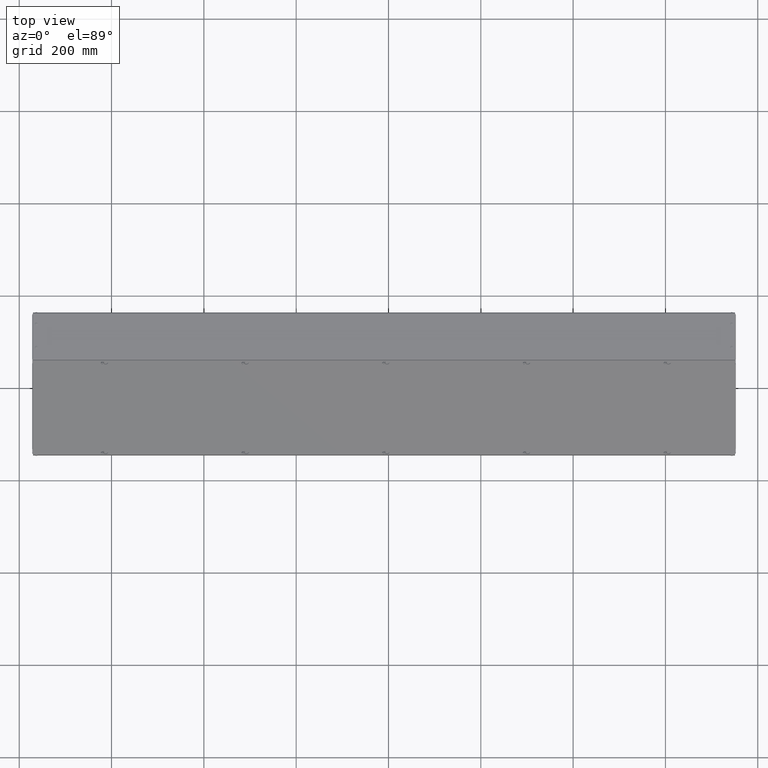
[diagram: clean part render]
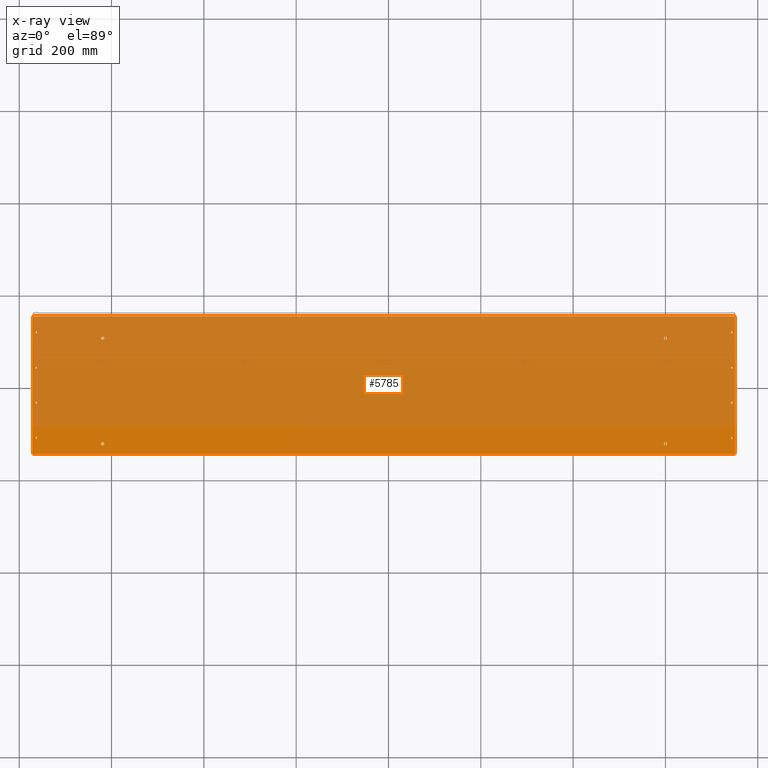
[diagram: x-ray — body ghosted, one internal face saturated and labeled with its STEP entity id]
A machine part, top view, then the same camera in x-ray: the body is ghosted and one INTERNAL B-rep face — a face not visible from any outside direction — is saturated and labeled: STEP entity #5785.
In plain terms, the highlighted planar face has unit normal (0, 0, 1).
Its self-contained STEP definition (entity closure, byte-faithful):
#67 = CARTESIAN_POINT ( 'NONE',  ( -30.10410261284468803, 0.2610560773330821704, -2.925999999999999712 ) ) ;
#87 = EDGE_CURVE ( 'NONE', #47981, #4675, #55573, .T. ) ;
#467 = ORIENTED_EDGE ( 'NONE', *, *, #30110, .T. ) ;
#586 = EDGE_CURVE ( 'NONE', #84459, #63064, #25784, .T. ) ;
#711 = CIRCLE ( 'NONE', #66900, 0.1406250000000000833 ) ;
#1185 = DIRECTION ( 'NONE',  ( 0.000000000000000000, -1.000000000000000000, -0.000000000000000000 ) ) ;
#1289 = AXIS2_PLACEMENT_3D ( 'NONE', #33510, #7184, #67166 ) ;
#1302 = ORIENTED_EDGE ( 'NONE', *, *, #85970, .T. ) ;
#1373 = CARTESIAN_POINT ( 'NONE',  ( -30.10410261284468803, -1.274443922666927076, -2.925999999999973511 ) ) ;
#1643 = ORIENTED_EDGE ( 'NONE', *, *, #71227, .T. ) ;
#1821 = DIRECTION ( 'NONE',  ( -0.000000000000000000, -0.000000000000000000, -1.000000000000000000 ) ) ;
#1939 = EDGE_CURVE ( 'NONE', #110360, #84459, #85112, .T. ) ;
#2021 = VERTEX_POINT ( 'NONE', #87285 ) ;
#2071 = AXIS2_PLACEMENT_3D ( 'NONE', #8148, #24937, #110011 ) ;
#2684 = EDGE_CURVE ( 'NONE', #87425, #71681, #72903, .T. ) ;
#3114 = CARTESIAN_POINT ( 'NONE',  ( -29.97510261284469024, 0.2610560773330821704, -2.925999999999999712 ) ) ;
#3175 = CARTESIAN_POINT ( 'NONE',  ( -30.03960261284468913, 1.796556077333073098, -2.925999999999973511 ) ) ;
#3363 = LINE ( 'NONE', #64997, #63883 ) ;
#3573 = FACE_BOUND ( 'NONE', #63814, .T. ) ;
#3999 = DIRECTION ( 'NONE',  ( 1.000000000000000000, 0.000000000000000000, 0.000000000000000000 ) ) ;
#4057 = EDGE_CURVE ( 'NONE', #29372, #75062, #90377, .T. ) ;
#4448 = CARTESIAN_POINT ( 'NONE',  ( 29.33739738715530621, 4.725556077333092908, -2.925999999999999712 ) ) ;
#4509 = ORIENTED_EDGE ( 'NONE', *, *, #48217, .T. ) ;
#4675 = VERTEX_POINT ( 'NONE', #75490 ) ;
#4802 = CIRCLE ( 'NONE', #67452, 0.06449999999999926625 ) ;
#4894 = DIRECTION ( 'NONE',  ( 1.000000000000000000, 0.000000000000000000, 0.000000000000000000 ) ) ;
#5207 = ORIENTED_EDGE ( 'NONE', *, *, #12339, .T. ) ;
#5224 = ORIENTED_EDGE ( 'NONE', *, *, #65846, .T. ) ;
#5241 = FACE_BOUND ( 'NONE', #100048, .T. ) ;
#5785 = ADVANCED_FACE ( 'NONE', ( #88679, #39492, #22034, #89227, #3573, #12564, #80863, #98152, #29337, #13126, #71454, #5241, #80329 ), #81399, .T. ) ;
#5865 = EDGE_LOOP ( 'NONE', ( #109676, #74136 ) ) ;
#5966 = CARTESIAN_POINT ( 'NONE',  ( 29.27289738715530731, 4.725556077333092908, -2.925999999999999712 ) ) ;
#6095 = AXIS2_PLACEMENT_3D ( 'NONE', #28340, #102836, #77103 ) ;
#6464 = AXIS2_PLACEMENT_3D ( 'NONE', #56890, #33266, #60722 ) ;
#6536 = CIRCLE ( 'NONE', #79844, 0.06449999999999926625 ) ;
#7184 = DIRECTION ( 'NONE',  ( -0.000000000000000000, -0.000000000000000000, -1.000000000000000000 ) ) ;
#7399 = VERTEX_POINT ( 'NONE', #75769 ) ;
#7944 = CARTESIAN_POINT ( 'NONE',  ( 23.75727238715530731, -4.738943922666926767, -2.925999999999999712 ) ) ;
#8056 = CARTESIAN_POINT ( 'NONE',  ( 29.27289738715530731, -1.274443922666906870, -2.925999999999947310 ) ) ;
#8148 = CARTESIAN_POINT ( 'NONE',  ( -30.03960261284468913, 4.796556077333073098, -2.925999999999999712 ) ) ;
#8338 = LINE ( 'NONE', #58791, #97193 ) ;
#8450 = CIRCLE ( 'NONE', #24466, 0.1406250000000000833 ) ;
#8699 = CARTESIAN_POINT ( 'NONE',  ( 29.33739738715530621, -4.274443922666907092, -2.925999999999960632 ) ) ;
#8985 = CARTESIAN_POINT ( 'NONE',  ( -29.97510261284469024, 0.2610560773330821704, -2.925999999999999712 ) ) ;
#9421 = ORIENTED_EDGE ( 'NONE', *, *, #2684, .T. ) ;
#11255 = EDGE_CURVE ( 'NONE', #28569, #70049, #23058, .T. ) ;
#11435 = CARTESIAN_POINT ( 'NONE',  ( -24.38335261284468913, -4.738943922666926767, -2.925999999999999712 ) ) ;
#11994 = CIRCLE ( 'NONE', #74629, 0.06449999999999926625 ) ;
#12164 = ORIENTED_EDGE ( 'NONE', *, *, #19745, .T. ) ;
#12339 = EDGE_CURVE ( 'NONE', #70049, #83781, #37708, .T. ) ;
#12383 = VECTOR ( 'NONE', #100377, 39.37007874015748143 ) ;
#12564 = FACE_BOUND ( 'NONE', #32855, .T. ) ;
#12592 = ORIENTED_EDGE ( 'NONE', *, *, #30614, .T. ) ;
#12611 = CIRCLE ( 'NONE', #51949, 0.06449999999999926625 ) ;
#12808 = CIRCLE ( 'NONE', #2071, 0.06449999999999926625 ) ;
#12867 = CARTESIAN_POINT ( 'NONE',  ( 29.55414738715530731, 0.2610560773330821704, -2.925999999999999712 ) ) ;
#13028 = CARTESIAN_POINT ( 'NONE',  ( -30.32085261284468913, 0.2610560773330821704, -2.925999999999999712 ) ) ;
#13096 = EDGE_CURVE ( 'NONE', #75062, #63698, #69164, .T. ) ;
#13126 = FACE_BOUND ( 'NONE', #5865, .T. ) ;
#13169 = DIRECTION ( 'NONE',  ( -0.000000000000000000, 1.000000000000000000, 0.000000000000000000 ) ) ;
#13410 = LINE ( 'NONE', #89500, #53964 ) ;
#13775 = DIRECTION ( 'NONE',  ( -0.000000000000000000, 1.000000000000000000, 0.000000000000000000 ) ) ;
#14184 = LINE ( 'NONE', #30401, #75920 ) ;
#14226 = EDGE_CURVE ( 'NONE', #36136, #18622, #102645, .T. ) ;
#14552 = CARTESIAN_POINT ( 'NONE',  ( 29.27289738715530731, 1.725556077333093130, -2.925999999999973511 ) ) ;
#14679 = CARTESIAN_POINT ( 'NONE',  ( -30.10410261284468803, -4.203443922666926902, -2.925999999999960632 ) ) ;
#14694 = DIRECTION ( 'NONE',  ( -0.000000000000000000, -0.000000000000000000, -1.000000000000000000 ) ) ;
#14763 = ORIENTED_EDGE ( 'NONE', *, *, #65984, .T. ) ;
#14911 = CARTESIAN_POINT ( 'NONE',  ( 29.20839738715530842, 0.2610560773330821704, -2.925999999999999712 ) ) ;
#15136 = ORIENTED_EDGE ( 'NONE', *, *, #85664, .T. ) ;
#15186 = DIRECTION ( 'NONE',  ( -0.000000000000000000, -0.000000000000000000, -1.000000000000000000 ) ) ;
#15219 = CIRCLE ( 'NONE', #42142, 0.06449999999999926625 ) ;
#15240 = DIRECTION ( 'NONE',  ( 1.000000000000000000, 0.000000000000000000, 0.000000000000000000 ) ) ;
#15477 = EDGE_CURVE ( 'NONE', #69903, #92430, #106278, .T. ) ;
#16056 = DIRECTION ( 'NONE',  ( -0.000000000000000000, -0.000000000000000000, -1.000000000000000000 ) ) ;
#16068 = DIRECTION ( 'NONE',  ( -0.000000000000000000, -0.000000000000000000, -1.000000000000000000 ) ) ;
#16822 = CARTESIAN_POINT ( 'NONE',  ( -30.10410261284468803, -4.274443922666926632, -2.925999999999960632 ) ) ;
#16866 = LINE ( 'NONE', #51053, #63683 ) ;
#16969 = VECTOR ( 'NONE', #103045, 39.37007874015748143 ) ;
#17520 = ORIENTED_EDGE ( 'NONE', *, *, #39293, .T. ) ;
#17898 = CARTESIAN_POINT ( 'NONE',  ( -30.10410261284468803, 1.796556077333073098, -2.925999999999986834 ) ) ;
#18619 = CIRCLE ( 'NONE', #29411, 0.06449999999999926625 ) ;
#18622 = VERTEX_POINT ( 'NONE', #30743 ) ;
#18769 = ORIENTED_EDGE ( 'NONE', *, *, #11255, .T. ) ;
#18939 = DIRECTION ( 'NONE',  ( -0.000000000000000000, -0.000000000000000000, -1.000000000000000000 ) ) ;
#19151 = AXIS2_PLACEMENT_3D ( 'NONE', #22360, #101274, #24561 ) ;
#19224 = CARTESIAN_POINT ( 'NONE',  ( 29.55414738715530731, -5.602443922666921594, -2.925999999999999712 ) ) ;
#19507 = ORIENTED_EDGE ( 'NONE', *, *, #586, .T. ) ;
#19703 = CIRCLE ( 'NONE', #32244, 0.1406250000000000833 ) ;
#19745 = EDGE_CURVE ( 'NONE', #60635, #7399, #12808, .T. ) ;
#20486 = EDGE_LOOP ( 'NONE', ( #61306, #61018 ) ) ;
#21356 = VERTEX_POINT ( 'NONE', #43670 ) ;
#21567 = LINE ( 'NONE', #99921, #23849 ) ;
#22034 = FACE_BOUND ( 'NONE', #99055, .T. ) ;
#22089 = DIRECTION ( 'NONE',  ( -0.000000000000000000, -0.000000000000000000, -1.000000000000000000 ) ) ;
#22297 = CARTESIAN_POINT ( 'NONE',  ( -29.97510261284469024, 4.725556077333073368, -2.925999999999999712 ) ) ;
#22360 = CARTESIAN_POINT ( 'NONE',  ( 29.27289738715530731, 4.796556077333092638, -2.925999999999999712 ) ) ;
#22482 = EDGE_CURVE ( 'NONE', #18622, #36136, #103006, .T. ) ;
#23058 = LINE ( 'NONE', #48360, #77811 ) ;
#23193 = DIRECTION ( 'NONE',  ( 1.000000000000000000, 0.000000000000000000, 0.000000000000000000 ) ) ;
#23270 = EDGE_CURVE ( 'NONE', #88938, #68200, #107067, .T. ) ;
#23685 = CARTESIAN_POINT ( 'NONE',  ( -29.97510261284469024, 0.2610560773330821704, -2.925999999999999712 ) ) ;
#23714 = EDGE_CURVE ( 'NONE', #54673, #110360, #11994, .T. ) ;
#23849 = VECTOR ( 'NONE', #13775, 39.37007874015748143 ) ;
#23932 = AXIS2_PLACEMENT_3D ( 'NONE', #100137, #64954, #47644 ) ;
#24466 = AXIS2_PLACEMENT_3D ( 'NONE', #69663, #93618, #103720 ) ;
#24561 = DIRECTION ( 'NONE',  ( 1.000000000000000000, 0.000000000000000000, 0.000000000000000000 ) ) ;
#24585 = ORIENTED_EDGE ( 'NONE', *, *, #88890, .T. ) ;
#24617 = VERTEX_POINT ( 'NONE', #107907 ) ;
#24937 = DIRECTION ( 'NONE',  ( -0.000000000000000000, -0.000000000000000000, -1.000000000000000000 ) ) ;
#25784 = CIRCLE ( 'NONE', #88366, 0.06449999999999926625 ) ;
#25790 = VERTEX_POINT ( 'NONE', #8699 ) ;
#26412 = EDGE_CURVE ( 'NONE', #2021, #46898, #32926, .T. ) ;
#27546 = CARTESIAN_POINT ( 'NONE',  ( -30.03960261284468913, 4.725556077333073368, -2.925999999999999712 ) ) ;
#27585 = DIRECTION ( 'NONE',  ( 0.000000000000000000, -1.000000000000000000, -0.000000000000000000 ) ) ;
#28039 = ORIENTED_EDGE ( 'NONE', *, *, #87982, .T. ) ;
#28340 = CARTESIAN_POINT ( 'NONE',  ( 23.61664738715530731, -4.738943922666926767, -2.925999999999999712 ) ) ;
#28569 = VERTEX_POINT ( 'NONE', #82409 ) ;
#28779 = DIRECTION ( 'NONE',  ( 1.000000000000000000, 0.000000000000000000, -0.000000000000000000 ) ) ;
#28866 = DIRECTION ( 'NONE',  ( 0.000000000000000000, -1.000000000000000000, -0.000000000000000000 ) ) ;
#29004 = VERTEX_POINT ( 'NONE', #40780 ) ;
#29052 = CARTESIAN_POINT ( 'NONE',  ( -29.97510261284469024, -4.274443922666926632, -2.925999999999960632 ) ) ;
#29252 = CARTESIAN_POINT ( 'NONE',  ( 29.20839738715530842, 1.796556077333093304, -2.925999999999986834 ) ) ;
#29321 = EDGE_CURVE ( 'NONE', #45063, #29372, #83749, .T. ) ;
#29337 = FACE_BOUND ( 'NONE', #75043, .T. ) ;
#29372 = VERTEX_POINT ( 'NONE', #61131 ) ;
#29390 = ORIENTED_EDGE ( 'NONE', *, *, #39735, .T. ) ;
#29411 = AXIS2_PLACEMENT_3D ( 'NONE', #92678, #16068, #58663 ) ;
#29687 = VECTOR ( 'NONE', #1185, 39.37007874015748143 ) ;
#29915 = CARTESIAN_POINT ( 'NONE',  ( -0.3833526128446826386, 0.2610560773330821704, -2.925999999999999712 ) ) ;
#30110 = EDGE_CURVE ( 'NONE', #68200, #29004, #57203, .T. ) ;
#30298 = CARTESIAN_POINT ( 'NONE',  ( 29.20839738715530842, 0.2610560773330821704, -2.925999999999999712 ) ) ;
#30388 = CARTESIAN_POINT ( 'NONE',  ( 29.33739738715530621, 0.2610560773330821704, -2.925999999999999712 ) ) ;
#30401 = CARTESIAN_POINT ( 'NONE',  ( -30.10410261284468803, 0.2610560773330821704, -2.925999999999999712 ) ) ;
#30614 = EDGE_CURVE ( 'NONE', #92430, #69903, #55526, .T. ) ;
#30743 = CARTESIAN_POINT ( 'NONE',  ( 23.47602238715530731, -4.738943922666926767, -2.925999999999999712 ) ) ;
#30962 = CARTESIAN_POINT ( 'NONE',  ( -29.97510261284469024, -1.274443922666927076, -2.925999999999973511 ) ) ;
#31089 = CARTESIAN_POINT ( 'NONE',  ( -30.03960261284468913, 1.725556077333072924, -2.925999999999973511 ) ) ;
#31837 = DIRECTION ( 'NONE',  ( -0.000000000000000000, 1.000000000000000000, 0.000000000000000000 ) ) ;
#31942 = VECTOR ( 'NONE', #99875, 39.37007874015748143 ) ;
#32244 = AXIS2_PLACEMENT_3D ( 'NONE', #49827, #72463, #97487 ) ;
#32333 = ORIENTED_EDGE ( 'NONE', *, *, #15477, .T. ) ;
#32576 = AXIS2_PLACEMENT_3D ( 'NONE', #14552, #101290, #83940 ) ;
#32750 = EDGE_CURVE ( 'NONE', #91322, #21356, #19703, .T. ) ;
#32804 = EDGE_CURVE ( 'NONE', #66942, #51550, #12611, .T. ) ;
#32855 = EDGE_LOOP ( 'NONE', ( #4509, #24585, #74690, #94249 ) ) ;
#32926 = CIRCLE ( 'NONE', #23932, 0.1406250000000000833 ) ;
#33154 = VECTOR ( 'NONE', #28866, 39.37007874015748143 ) ;
#33266 = DIRECTION ( 'NONE',  ( -0.000000000000000000, -0.000000000000000000, -1.000000000000000000 ) ) ;
#33510 = CARTESIAN_POINT ( 'NONE',  ( 29.27289738715530731, -4.203443922666907362, -2.925999999999921108 ) ) ;
#34192 = DIRECTION ( 'NONE',  ( -0.000000000000000000, 1.000000000000000000, 0.000000000000000000 ) ) ;
#34292 = CARTESIAN_POINT ( 'NONE',  ( -24.38335261284468913, -4.738943922666926767, -2.925999999999999712 ) ) ;
#34906 = VECTOR ( 'NONE', #27585, 39.37007874015748143 ) ;
#34989 = EDGE_LOOP ( 'NONE', ( #14763, #73045, #29390, #57605 ) ) ;
#35170 = EDGE_CURVE ( 'NONE', #21356, #91322, #711, .T. ) ;
#35808 = EDGE_CURVE ( 'NONE', #63698, #45063, #21567, .T. ) ;
#35830 = AXIS2_PLACEMENT_3D ( 'NONE', #34292, #60053, #77372 ) ;
#36061 = EDGE_CURVE ( 'NONE', #99584, #66942, #14184, .T. ) ;
#36136 = VERTEX_POINT ( 'NONE', #7944 ) ;
#36733 = DIRECTION ( 'NONE',  ( -0.000000000000000000, -0.000000000000000000, -1.000000000000000000 ) ) ;
#37294 = VERTEX_POINT ( 'NONE', #22297 ) ;
#37530 = AXIS2_PLACEMENT_3D ( 'NONE', #8056, #110483, #23193 ) ;
#37708 = LINE ( 'NONE', #13028, #34906 ) ;
#38311 = CARTESIAN_POINT ( 'NONE',  ( 23.75727238715530731, 4.261056077333083003, -2.925999999999999712 ) ) ;
#38315 = EDGE_CURVE ( 'NONE', #51550, #53742, #68981, .T. ) ;
#39246 = EDGE_CURVE ( 'NONE', #51140, #60635, #16866, .T. ) ;
#39293 = EDGE_CURVE ( 'NONE', #71681, #25790, #69548, .T. ) ;
#39492 = FACE_BOUND ( 'NONE', #34989, .T. ) ;
#39735 = EDGE_CURVE ( 'NONE', #77208, #47981, #4802, .T. ) ;
#40625 = AXIS2_PLACEMENT_3D ( 'NONE', #27546, #1821, #3999 ) ;
#40640 = CARTESIAN_POINT ( 'NONE',  ( -29.97510261284468669, 1.796556077333073098, -2.925999999999986834 ) ) ;
#40780 = CARTESIAN_POINT ( 'NONE',  ( 29.20839738715530842, -1.274443922666906870, -2.925999999999973511 ) ) ;
#41015 = DIRECTION ( 'NONE',  ( 1.000000000000000000, 0.000000000000000000, 0.000000000000000000 ) ) ;
#41175 = VERTEX_POINT ( 'NONE', #110547 ) ;
#41506 = CARTESIAN_POINT ( 'NONE',  ( 29.33739738715530976, -1.203443922666906696, -2.925999999999973511 ) ) ;
#42142 = AXIS2_PLACEMENT_3D ( 'NONE', #62480, #36733, #44060 ) ;
#43565 = CARTESIAN_POINT ( 'NONE',  ( -24.52397761284468913, -4.738943922666926767, -2.925999999999999712 ) ) ;
#43670 = CARTESIAN_POINT ( 'NONE',  ( 23.47602238715530731, 4.261056077333083003, -2.925999999999999712 ) ) ;
#43673 = CARTESIAN_POINT ( 'NONE',  ( 29.20839738715530842, -4.203443922666907362, -2.925999999999960632 ) ) ;
#44060 = DIRECTION ( 'NONE',  ( 1.000000000000000000, 0.000000000000000000, 0.000000000000000000 ) ) ;
#44666 = ORIENTED_EDGE ( 'NONE', *, *, #35170, .T. ) ;
#45063 = VERTEX_POINT ( 'NONE', #14679 ) ;
#45293 = DIRECTION ( 'NONE',  ( 1.000000000000000000, -7.623761842784078040E-14, 0.000000000000000000 ) ) ;
#45618 = VERTEX_POINT ( 'NONE', #93677 ) ;
#46049 = CIRCLE ( 'NONE', #40625, 0.06449999999999926625 ) ;
#46285 = DIRECTION ( 'NONE',  ( 1.000000000000000000, -7.623761842784078040E-14, 0.000000000000000000 ) ) ;
#46364 = AXIS2_PLACEMENT_3D ( 'NONE', #65644, #15186, #41015 ) ;
#46898 = VERTEX_POINT ( 'NONE', #90029 ) ;
#46966 = ORIENTED_EDGE ( 'NONE', *, *, #39246, .T. ) ;
#47644 = DIRECTION ( 'NONE',  ( 1.000000000000000000, 0.000000000000000000, 0.000000000000000000 ) ) ;
#47981 = VERTEX_POINT ( 'NONE', #76891 ) ;
#48217 = EDGE_CURVE ( 'NONE', #77464, #41175, #94502, .T. ) ;
#48360 = CARTESIAN_POINT ( 'NONE',  ( -0.3833526128446826386, 6.124556077333092929, -2.925999999999999712 ) ) ;
#48701 = CARTESIAN_POINT ( 'NONE',  ( -30.10410261284468803, 1.725556077333072924, -2.925999999999986834 ) ) ;
#49110 = DIRECTION ( 'NONE',  ( -0.000000000000000000, 1.000000000000000000, 0.000000000000000000 ) ) ;
#49408 = DIRECTION ( 'NONE',  ( -0.000000000000000000, 1.000000000000000000, 0.000000000000000000 ) ) ;
#49520 = VECTOR ( 'NONE', #34192, 39.37007874015748143 ) ;
#49827 = CARTESIAN_POINT ( 'NONE',  ( 23.61664738715530731, 4.261056077333083003, -2.925999999999999712 ) ) ;
#49980 = DIRECTION ( 'NONE',  ( -0.000000000000000000, -0.000000000000000000, -1.000000000000000000 ) ) ;
#50024 = EDGE_CURVE ( 'NONE', #45618, #83606, #98755, .T. ) ;
#50250 = DIRECTION ( 'NONE',  ( 1.000000000000000000, 0.000000000000000000, 0.000000000000000000 ) ) ;
#50608 = LINE ( 'NONE', #83053, #12383 ) ;
#50701 = ORIENTED_EDGE ( 'NONE', *, *, #23714, .T. ) ;
#51053 = CARTESIAN_POINT ( 'NONE',  ( -30.10410261284468803, 0.2610560773330821704, -2.925999999999999712 ) ) ;
#51140 = VERTEX_POINT ( 'NONE', #73859 ) ;
#51550 = VERTEX_POINT ( 'NONE', #69430 ) ;
#51949 = AXIS2_PLACEMENT_3D ( 'NONE', #80518, #18939, #45293 ) ;
#52220 = VERTEX_POINT ( 'NONE', #19224 ) ;
#52712 = EDGE_CURVE ( 'NONE', #63064, #54673, #88194, .T. ) ;
#52759 = CARTESIAN_POINT ( 'NONE',  ( -24.24272761284468913, -4.738943922666926767, -2.925999999999999712 ) ) ;
#53254 = VECTOR ( 'NONE', #91234, 39.37007874015748143 ) ;
#53742 = VERTEX_POINT ( 'NONE', #30962 ) ;
#53964 = VECTOR ( 'NONE', #96211, 39.37007874015748143 ) ;
#54673 = VERTEX_POINT ( 'NONE', #96578 ) ;
#55526 = CIRCLE ( 'NONE', #35830, 0.1406250000000000833 ) ;
#55573 = LINE ( 'NONE', #30298, #82769 ) ;
#55713 = DIRECTION ( 'NONE',  ( 0.000000000000000000, 0.000000000000000000, 1.000000000000000000 ) ) ;
#56255 = DIRECTION ( 'NONE',  ( -0.000000000000000000, -0.000000000000000000, -1.000000000000000000 ) ) ;
#56890 = CARTESIAN_POINT ( 'NONE',  ( 23.61664738715530731, -4.738943922666926767, -2.925999999999999712 ) ) ;
#56934 = DIRECTION ( 'NONE',  ( 1.000000000000000000, 0.000000000000000000, 0.000000000000000000 ) ) ;
#57203 = CIRCLE ( 'NONE', #37530, 0.06449999999999926625 ) ;
#57605 = ORIENTED_EDGE ( 'NONE', *, *, #87, .T. ) ;
#58090 = ORIENTED_EDGE ( 'NONE', *, *, #74070, .T. ) ;
#58113 = AXIS2_PLACEMENT_3D ( 'NONE', #11435, #56255, #88097 ) ;
#58149 = ORIENTED_EDGE ( 'NONE', *, *, #73931, .T. ) ;
#58346 = AXIS2_PLACEMENT_3D ( 'NONE', #108139, #49980, #15240 ) ;
#58576 = CARTESIAN_POINT ( 'NONE',  ( -30.10410261284468803, 4.796556077333073098, -2.925999999999999712 ) ) ;
#58663 = DIRECTION ( 'NONE',  ( 1.000000000000000000, 0.000000000000000000, 0.000000000000000000 ) ) ;
#58791 = CARTESIAN_POINT ( 'NONE',  ( -0.3833526128446826386, -5.602443922666927811, -2.925999999999999712 ) ) ;
#59382 = ORIENTED_EDGE ( 'NONE', *, *, #36061, .T. ) ;
#60053 = DIRECTION ( 'NONE',  ( -0.000000000000000000, -0.000000000000000000, -1.000000000000000000 ) ) ;
#60547 = VECTOR ( 'NONE', #31837, 39.37007874015748143 ) ;
#60635 = VERTEX_POINT ( 'NONE', #58576 ) ;
#60722 = DIRECTION ( 'NONE',  ( 1.000000000000000000, 0.000000000000000000, 0.000000000000000000 ) ) ;
#61018 = ORIENTED_EDGE ( 'NONE', *, *, #69016, .T. ) ;
#61131 = CARTESIAN_POINT ( 'NONE',  ( -29.97510261284468669, -4.203443922666921573, -2.925999999999960632 ) ) ;
#61252 = VERTEX_POINT ( 'NONE', #89773 ) ;
#61306 = ORIENTED_EDGE ( 'NONE', *, *, #26412, .T. ) ;
#62480 = CARTESIAN_POINT ( 'NONE',  ( 29.27289738715530731, -1.203443922666906696, -2.925999999999947310 ) ) ;
#62582 = DIRECTION ( 'NONE',  ( -0.000000000000000000, -0.000000000000000000, -1.000000000000000000 ) ) ;
#63064 = VERTEX_POINT ( 'NONE', #40640 ) ;
#63683 = VECTOR ( 'NONE', #49408, 39.37007874015748143 ) ;
#63698 = VERTEX_POINT ( 'NONE', #16822 ) ;
#63814 = EDGE_LOOP ( 'NONE', ( #19507, #103821, #50701, #105137 ) ) ;
#63883 = VECTOR ( 'NONE', #79533, 39.37007874015748143 ) ;
#64954 = DIRECTION ( 'NONE',  ( -0.000000000000000000, -0.000000000000000000, -1.000000000000000000 ) ) ;
#64997 = CARTESIAN_POINT ( 'NONE',  ( -29.97510261284469024, 0.2610560773330821704, -2.925999999999999712 ) ) ;
#65321 = DIRECTION ( 'NONE',  ( -0.000000000000000000, -0.000000000000000000, -1.000000000000000000 ) ) ;
#65644 = CARTESIAN_POINT ( 'NONE',  ( 29.27289738715530731, 1.796556077333093304, -2.925999999999973511 ) ) ;
#65846 = EDGE_CURVE ( 'NONE', #7399, #37294, #3363, .T. ) ;
#65984 = EDGE_CURVE ( 'NONE', #4675, #24617, #88824, .T. ) ;
#66169 = EDGE_LOOP ( 'NONE', ( #9421, #17520, #1302, #58090 ) ) ;
#66900 = AXIS2_PLACEMENT_3D ( 'NONE', #81613, #88886, #4894 ) ;
#66942 = VERTEX_POINT ( 'NONE', #82178 ) ;
#67166 = DIRECTION ( 'NONE',  ( 1.000000000000000000, 0.000000000000000000, 0.000000000000000000 ) ) ;
#67218 = VECTOR ( 'NONE', #13169, 39.37007874015748143 ) ;
#67452 = AXIS2_PLACEMENT_3D ( 'NONE', #5966, #16056, #50250 ) ;
#68200 = VERTEX_POINT ( 'NONE', #102600 ) ;
#68681 = EDGE_LOOP ( 'NONE', ( #58149, #95508, #467, #1643 ) ) ;
#68918 = EDGE_LOOP ( 'NONE', ( #12164, #5224, #69287, #46966 ) ) ;
#68981 = LINE ( 'NONE', #8985, #16969 ) ;
#69016 = EDGE_CURVE ( 'NONE', #46898, #2021, #8450, .T. ) ;
#69164 = CIRCLE ( 'NONE', #58346, 0.06449999999999926625 ) ;
#69287 = ORIENTED_EDGE ( 'NONE', *, *, #103884, .T. ) ;
#69430 = CARTESIAN_POINT ( 'NONE',  ( -29.97510261284468669, -1.203443922666922017, -2.925999999999973511 ) ) ;
#69548 = LINE ( 'NONE', #77892, #29687 ) ;
#69663 = CARTESIAN_POINT ( 'NONE',  ( -24.38335261284468913, 4.261056077333083003, -2.925999999999999712 ) ) ;
#69903 = VERTEX_POINT ( 'NONE', #43565 ) ;
#70049 = VERTEX_POINT ( 'NONE', #101585 ) ;
#70970 = CARTESIAN_POINT ( 'NONE',  ( -30.03960261284468913, -4.203443922666926902, -2.925999999999921108 ) ) ;
#71227 = EDGE_CURVE ( 'NONE', #29004, #98092, #13410, .T. ) ;
#71454 = FACE_BOUND ( 'NONE', #20486, .T. ) ;
#71534 = EDGE_LOOP ( 'NONE', ( #87081, #85220, #28039, #59382 ) ) ;
#71681 = VERTEX_POINT ( 'NONE', #101369 ) ;
#71942 = EDGE_LOOP ( 'NONE', ( #18769, #5207, #15136, #108213 ) ) ;
#72353 = CARTESIAN_POINT ( 'NONE',  ( 29.20839738715530842, 1.725556077333093130, -2.925999999999986834 ) ) ;
#72380 = CARTESIAN_POINT ( 'NONE',  ( 29.33739738715530621, 0.2610560773330821704, -2.925999999999999712 ) ) ;
#72463 = DIRECTION ( 'NONE',  ( -0.000000000000000000, -0.000000000000000000, -1.000000000000000000 ) ) ;
#72792 = ORIENTED_EDGE ( 'NONE', *, *, #29321, .T. ) ;
#72903 = CIRCLE ( 'NONE', #1289, 0.06449999999999926625 ) ;
#73045 = ORIENTED_EDGE ( 'NONE', *, *, #75637, .T. ) ;
#73051 = DIRECTION ( 'NONE',  ( 1.000000000000000000, 0.000000000000000000, 0.000000000000000000 ) ) ;
#73859 = CARTESIAN_POINT ( 'NONE',  ( -30.10410261284468803, 4.725556077333073368, -2.925999999999999712 ) ) ;
#73931 = EDGE_CURVE ( 'NONE', #98092, #88938, #15219, .T. ) ;
#74070 = EDGE_CURVE ( 'NONE', #61252, #87425, #89807, .T. ) ;
#74136 = ORIENTED_EDGE ( 'NONE', *, *, #22482, .T. ) ;
#74629 = AXIS2_PLACEMENT_3D ( 'NONE', #31089, #65321, #56934 ) ;
#74690 = ORIENTED_EDGE ( 'NONE', *, *, #50024, .T. ) ;
#75043 = EDGE_LOOP ( 'NONE', ( #81514, #44666 ) ) ;
#75062 = VERTEX_POINT ( 'NONE', #29052 ) ;
#75195 = DIRECTION ( 'NONE',  ( 0.000000000000000000, -1.000000000000000000, -0.000000000000000000 ) ) ;
#75490 = CARTESIAN_POINT ( 'NONE',  ( 29.20839738715530842, 4.796556077333092638, -2.925999999999999712 ) ) ;
#75637 = EDGE_CURVE ( 'NONE', #24617, #77208, #50608, .T. ) ;
#75769 = CARTESIAN_POINT ( 'NONE',  ( -29.97510261284468314, 4.796556077333073098, -2.925999999999999712 ) ) ;
#75920 = VECTOR ( 'NONE', #99240, 39.37007874015748143 ) ;
#76121 = ORIENTED_EDGE ( 'NONE', *, *, #13096, .T. ) ;
#76314 = EDGE_CURVE ( 'NONE', #83606, #77464, #91549, .T. ) ;
#76891 = CARTESIAN_POINT ( 'NONE',  ( 29.20839738715530842, 4.725556077333092908, -2.925999999999999712 ) ) ;
#77103 = DIRECTION ( 'NONE',  ( 1.000000000000000000, 0.000000000000000000, 0.000000000000000000 ) ) ;
#77208 = VERTEX_POINT ( 'NONE', #4448 ) ;
#77372 = DIRECTION ( 'NONE',  ( 1.000000000000000000, 0.000000000000000000, 0.000000000000000000 ) ) ;
#77464 = VERTEX_POINT ( 'NONE', #29252 ) ;
#77811 = VECTOR ( 'NONE', #84077, 39.37007874015748143 ) ;
#77892 = CARTESIAN_POINT ( 'NONE',  ( 29.33739738715530621, 0.2610560773330821704, -2.925999999999999712 ) ) ;
#79533 = DIRECTION ( 'NONE',  ( 0.000000000000000000, -1.000000000000000000, -0.000000000000000000 ) ) ;
#79837 = VECTOR ( 'NONE', #75195, 39.37007874015748143 ) ;
#79844 = AXIS2_PLACEMENT_3D ( 'NONE', #90279, #14694, #73051 ) ;
#80329 = FACE_OUTER_BOUND ( 'NONE', #71942, .T. ) ;
#80518 = CARTESIAN_POINT ( 'NONE',  ( -30.03960261284468913, -1.203443922666926902, -2.925999999999947310 ) ) ;
#80863 = FACE_BOUND ( 'NONE', #71534, .T. ) ;
#81399 = PLANE ( 'NONE',  #105024 ) ;
#81514 = ORIENTED_EDGE ( 'NONE', *, *, #32750, .T. ) ;
#81613 = CARTESIAN_POINT ( 'NONE',  ( 23.61664738715530731, 4.261056077333083003, -2.925999999999999712 ) ) ;
#81798 = LINE ( 'NONE', #72380, #53254 ) ;
#81921 = AXIS2_PLACEMENT_3D ( 'NONE', #70970, #22089, #46285 ) ;
#82178 = CARTESIAN_POINT ( 'NONE',  ( -30.10410261284468803, -1.203443922666926902, -2.925999999999973511 ) ) ;
#82409 = CARTESIAN_POINT ( 'NONE',  ( 29.55414738715530731, 6.124556077333090265, -2.925999999999999268 ) ) ;
#82769 = VECTOR ( 'NONE', #108076, 39.37007874015748143 ) ;
#83053 = CARTESIAN_POINT ( 'NONE',  ( 29.33739738715530621, 0.2610560773330821704, -2.925999999999999712 ) ) ;
#83374 = DIRECTION ( 'NONE',  ( 1.000000000000000000, 0.000000000000000000, -0.000000000000000000 ) ) ;
#83606 = VERTEX_POINT ( 'NONE', #72353 ) ;
#83749 = CIRCLE ( 'NONE', #81921, 0.06449999999999926625 ) ;
#83781 = VERTEX_POINT ( 'NONE', #86159 ) ;
#83940 = DIRECTION ( 'NONE',  ( 1.000000000000000000, 0.000000000000000000, 0.000000000000000000 ) ) ;
#84077 = DIRECTION ( 'NONE',  ( -1.000000000000000000, -0.000000000000000000, 0.000000000000000000 ) ) ;
#84459 = VERTEX_POINT ( 'NONE', #17898 ) ;
#85112 = LINE ( 'NONE', #67, #49520 ) ;
#85220 = ORIENTED_EDGE ( 'NONE', *, *, #38315, .T. ) ;
#85565 = VECTOR ( 'NONE', #49110, 39.37007874015748143 ) ;
#85664 = EDGE_CURVE ( 'NONE', #83781, #52220, #8338, .T. ) ;
#85970 = EDGE_CURVE ( 'NONE', #25790, #61252, #18619, .T. ) ;
#86159 = CARTESIAN_POINT ( 'NONE',  ( -30.32085261284468913, -5.602443922666924259, -2.925999999999999268 ) ) ;
#87081 = ORIENTED_EDGE ( 'NONE', *, *, #32804, .T. ) ;
#87285 = CARTESIAN_POINT ( 'NONE',  ( -24.24272761284468913, 4.261056077333083003, -2.925999999999999712 ) ) ;
#87425 = VERTEX_POINT ( 'NONE', #43673 ) ;
#87982 = EDGE_CURVE ( 'NONE', #53742, #99584, #6536, .T. ) ;
#88097 = DIRECTION ( 'NONE',  ( 1.000000000000000000, 0.000000000000000000, 0.000000000000000000 ) ) ;
#88194 = LINE ( 'NONE', #3114, #33154 ) ;
#88366 = AXIS2_PLACEMENT_3D ( 'NONE', #3175, #62582, #108215 ) ;
#88679 = FACE_BOUND ( 'NONE', #68918, .T. ) ;
#88824 = CIRCLE ( 'NONE', #19151, 0.06449999999999926625 ) ;
#88886 = DIRECTION ( 'NONE',  ( -0.000000000000000000, -0.000000000000000000, -1.000000000000000000 ) ) ;
#88890 = EDGE_CURVE ( 'NONE', #41175, #45618, #81798, .T. ) ;
#88938 = VERTEX_POINT ( 'NONE', #41506 ) ;
#89227 = FACE_BOUND ( 'NONE', #66169, .T. ) ;
#89500 = CARTESIAN_POINT ( 'NONE',  ( 29.20839738715530842, 0.2610560773330821704, -2.925999999999999712 ) ) ;
#89520 = LINE ( 'NONE', #12867, #60547 ) ;
#89773 = CARTESIAN_POINT ( 'NONE',  ( 29.20839738715530842, -4.274443922666907092, -2.925999999999960632 ) ) ;
#89807 = LINE ( 'NONE', #97063, #67218 ) ;
#90029 = CARTESIAN_POINT ( 'NONE',  ( -24.52397761284468913, 4.261056077333083003, -2.925999999999999712 ) ) ;
#90279 = CARTESIAN_POINT ( 'NONE',  ( -30.03960261284468913, -1.274443922666927076, -2.925999999999947310 ) ) ;
#90377 = LINE ( 'NONE', #23685, #31942 ) ;
#91234 = DIRECTION ( 'NONE',  ( 0.000000000000000000, -1.000000000000000000, -0.000000000000000000 ) ) ;
#91322 = VERTEX_POINT ( 'NONE', #38311 ) ;
#91549 = LINE ( 'NONE', #14911, #85565 ) ;
#92430 = VERTEX_POINT ( 'NONE', #52759 ) ;
#92678 = CARTESIAN_POINT ( 'NONE',  ( 29.27289738715530731, -4.274443922666907092, -2.925999999999921108 ) ) ;
#93618 = DIRECTION ( 'NONE',  ( -0.000000000000000000, -0.000000000000000000, -1.000000000000000000 ) ) ;
#93677 = CARTESIAN_POINT ( 'NONE',  ( 29.33739738715530621, 1.725556077333093130, -2.925999999999986834 ) ) ;
#94249 = ORIENTED_EDGE ( 'NONE', *, *, #76314, .T. ) ;
#94502 = CIRCLE ( 'NONE', #46364, 0.06449999999999926625 ) ;
#95508 = ORIENTED_EDGE ( 'NONE', *, *, #23270, .T. ) ;
#96211 = DIRECTION ( 'NONE',  ( -0.000000000000000000, 1.000000000000000000, 0.000000000000000000 ) ) ;
#96578 = CARTESIAN_POINT ( 'NONE',  ( -29.97510261284469024, 1.725556077333072924, -2.925999999999986834 ) ) ;
#96899 = ORIENTED_EDGE ( 'NONE', *, *, #4057, .T. ) ;
#97063 = CARTESIAN_POINT ( 'NONE',  ( 29.20839738715530842, 0.2610560773330821704, -2.925999999999999712 ) ) ;
#97193 = VECTOR ( 'NONE', #83374, 39.37007874015748143 ) ;
#97487 = DIRECTION ( 'NONE',  ( 1.000000000000000000, 0.000000000000000000, 0.000000000000000000 ) ) ;
#98092 = VERTEX_POINT ( 'NONE', #109394 ) ;
#98152 = FACE_BOUND ( 'NONE', #68681, .T. ) ;
#98755 = CIRCLE ( 'NONE', #32576, 0.06449999999999926625 ) ;
#99055 = EDGE_LOOP ( 'NONE', ( #72792, #96899, #76121, #108563 ) ) ;
#99240 = DIRECTION ( 'NONE',  ( -0.000000000000000000, 1.000000000000000000, 0.000000000000000000 ) ) ;
#99584 = VERTEX_POINT ( 'NONE', #1373 ) ;
#99875 = DIRECTION ( 'NONE',  ( 0.000000000000000000, -1.000000000000000000, -0.000000000000000000 ) ) ;
#99921 = CARTESIAN_POINT ( 'NONE',  ( -30.10410261284468803, 0.2610560773330821704, -2.925999999999999712 ) ) ;
#100048 = EDGE_LOOP ( 'NONE', ( #12592, #32333 ) ) ;
#100137 = CARTESIAN_POINT ( 'NONE',  ( -24.38335261284468913, 4.261056077333083003, -2.925999999999999712 ) ) ;
#100377 = DIRECTION ( 'NONE',  ( 0.000000000000000000, -1.000000000000000000, -0.000000000000000000 ) ) ;
#101274 = DIRECTION ( 'NONE',  ( -0.000000000000000000, -0.000000000000000000, -1.000000000000000000 ) ) ;
#101290 = DIRECTION ( 'NONE',  ( -0.000000000000000000, -0.000000000000000000, -1.000000000000000000 ) ) ;
#101369 = CARTESIAN_POINT ( 'NONE',  ( 29.33739738715530976, -4.203443922666907362, -2.925999999999960632 ) ) ;
#101585 = CARTESIAN_POINT ( 'NONE',  ( -30.32085261284468913, 6.124556077333084048, -2.925999999999999268 ) ) ;
#102600 = CARTESIAN_POINT ( 'NONE',  ( 29.33739738715530621, -1.274443922666906870, -2.925999999999973511 ) ) ;
#102645 = CIRCLE ( 'NONE', #6095, 0.1406250000000000833 ) ;
#102836 = DIRECTION ( 'NONE',  ( -0.000000000000000000, -0.000000000000000000, -1.000000000000000000 ) ) ;
#103006 = CIRCLE ( 'NONE', #6464, 0.1406250000000000833 ) ;
#103045 = DIRECTION ( 'NONE',  ( 0.000000000000000000, -1.000000000000000000, -0.000000000000000000 ) ) ;
#103720 = DIRECTION ( 'NONE',  ( 1.000000000000000000, 0.000000000000000000, 0.000000000000000000 ) ) ;
#103821 = ORIENTED_EDGE ( 'NONE', *, *, #52712, .T. ) ;
#103884 = EDGE_CURVE ( 'NONE', #37294, #51140, #46049, .T. ) ;
#105024 = AXIS2_PLACEMENT_3D ( 'NONE', #29915, #55713, #28779 ) ;
#105137 = ORIENTED_EDGE ( 'NONE', *, *, #1939, .T. ) ;
#106278 = CIRCLE ( 'NONE', #58113, 0.1406250000000000833 ) ;
#107067 = LINE ( 'NONE', #30388, #79837 ) ;
#107907 = CARTESIAN_POINT ( 'NONE',  ( 29.33739738715531331, 4.796556077333092638, -2.925999999999999712 ) ) ;
#108076 = DIRECTION ( 'NONE',  ( -0.000000000000000000, 1.000000000000000000, 0.000000000000000000 ) ) ;
#108139 = CARTESIAN_POINT ( 'NONE',  ( -30.03960261284468913, -4.274443922666926632, -2.925999999999921108 ) ) ;
#108213 = ORIENTED_EDGE ( 'NONE', *, *, #109721, .T. ) ;
#108215 = DIRECTION ( 'NONE',  ( 1.000000000000000000, 0.000000000000000000, 0.000000000000000000 ) ) ;
#108563 = ORIENTED_EDGE ( 'NONE', *, *, #35808, .T. ) ;
#109394 = CARTESIAN_POINT ( 'NONE',  ( 29.20839738715530842, -1.203443922666906696, -2.925999999999973511 ) ) ;
#109676 = ORIENTED_EDGE ( 'NONE', *, *, #14226, .T. ) ;
#109721 = EDGE_CURVE ( 'NONE', #52220, #28569, #89520, .T. ) ;
#110011 = DIRECTION ( 'NONE',  ( 1.000000000000000000, 0.000000000000000000, 0.000000000000000000 ) ) ;
#110360 = VERTEX_POINT ( 'NONE', #48701 ) ;
#110483 = DIRECTION ( 'NONE',  ( -0.000000000000000000, -0.000000000000000000, -1.000000000000000000 ) ) ;
#110547 = CARTESIAN_POINT ( 'NONE',  ( 29.33739738715530976, 1.796556077333093304, -2.925999999999986834 ) ) ;